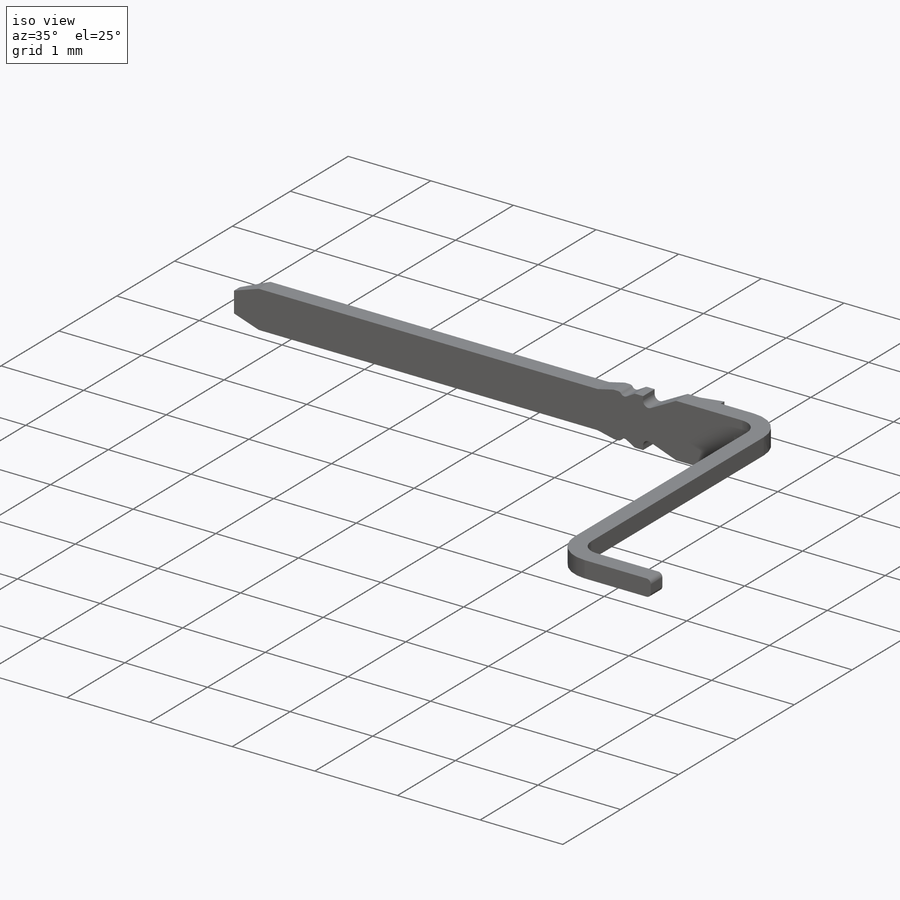
[diagram: iso view]
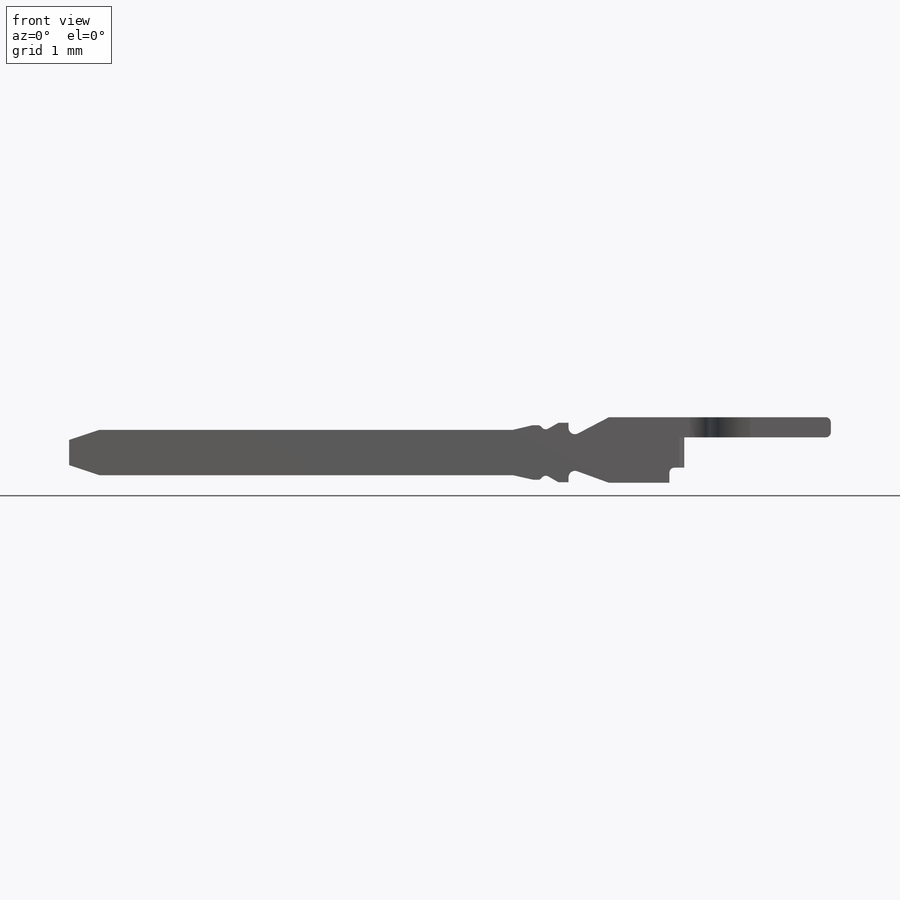
[diagram: front view]
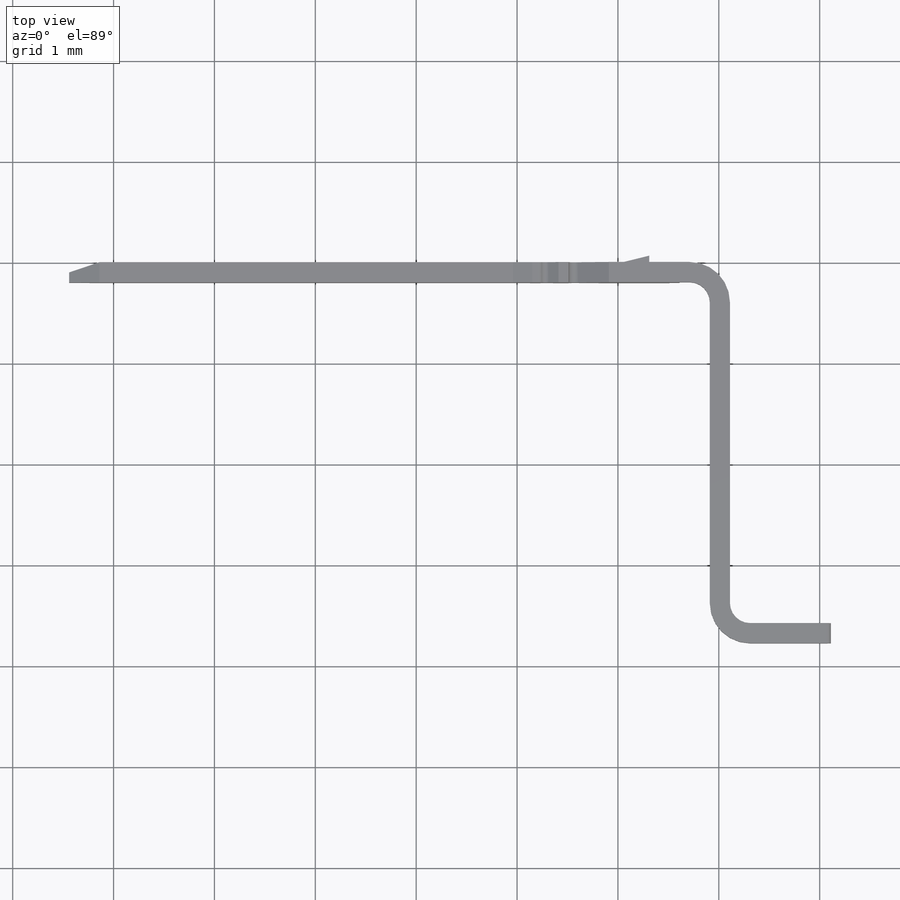
[diagram: top view]
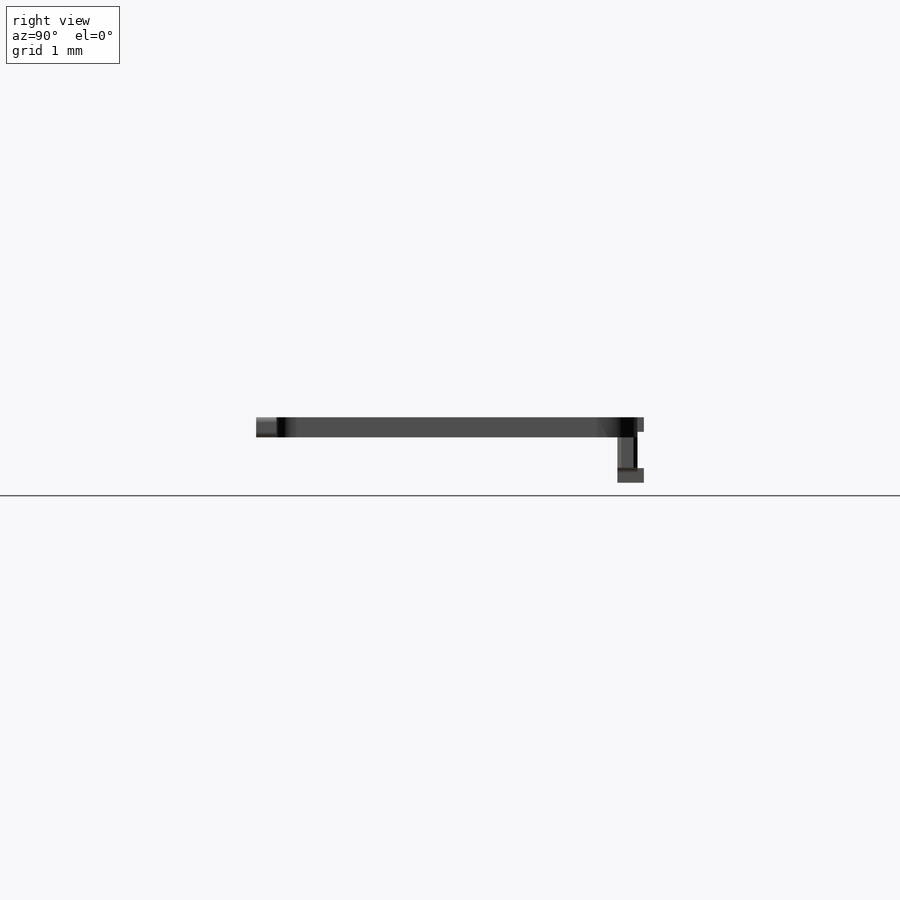
[diagram: right view]
SOLIDWORKS PART (.sldprt)
format: sldprt  version: not decoded by parser v0  size: 431,616 bytes
history: native  units: mm
features: sketch x5, plane x3, extrude x3, cut_extrude x2, material x1, fillet x1, pattern_linear x1 (+10 scaffold rows collapsed)
feature tree (26):
  scaffold x10  (default folders/planes/origin — collapsed)
  material  "Material <not specified>"
  plane  "Plano frontal"
  plane  "Plano superior"
  plane  "Plano direito"
  sketch  "Esboço1"  dims[D1=4.1mm]
  extrude  "Ressalto-extrusão1"  Depth=0.2mm
  sketch  "Esboço2"  dims[D5=0.2mm D6=0.4mm D12=0.4mm D13=0.2mm D1=0.2mm D2=0.4mm D3=0.4mm D4=0.2mm D7=2.98mm D8=0.2mm D9=0.2mm D10=0.2mm D11=0.8mm]
  extrude  "Ressalto-extrusão2"  Depth=0.2mm
  sketch  "Esboço3"  dims[D1=0.1mm]
  cut_extrude  "Corte-extrusão1"  Depth=1mm
  fillet  "Filete1"  Radius=0.05mm
  sketch  "Esboço4"  dims[D1=0.2527mm D2=0.0624mm D3=5.4973mm]
  extrude  "Ressalto-extrusão3"  Depth=0.145mm
  pattern_linear  "Padrão linear1"  Count1=2 Count2=1 Spacing1=0.505mm Spacing2=10mm
  sketch  "Esboço5"  dims[D1=0.012mm D2=0.04mm D3=0.04mm]
  cut_extrude  "Corte-extrusão2"  [1 undecoded]
decode coverage: 11 of 12 modeling features carry decoded parameters
note: 1 parameter value undecoded
note: suppression state not decoded; provenance and decode notes live in map.json
